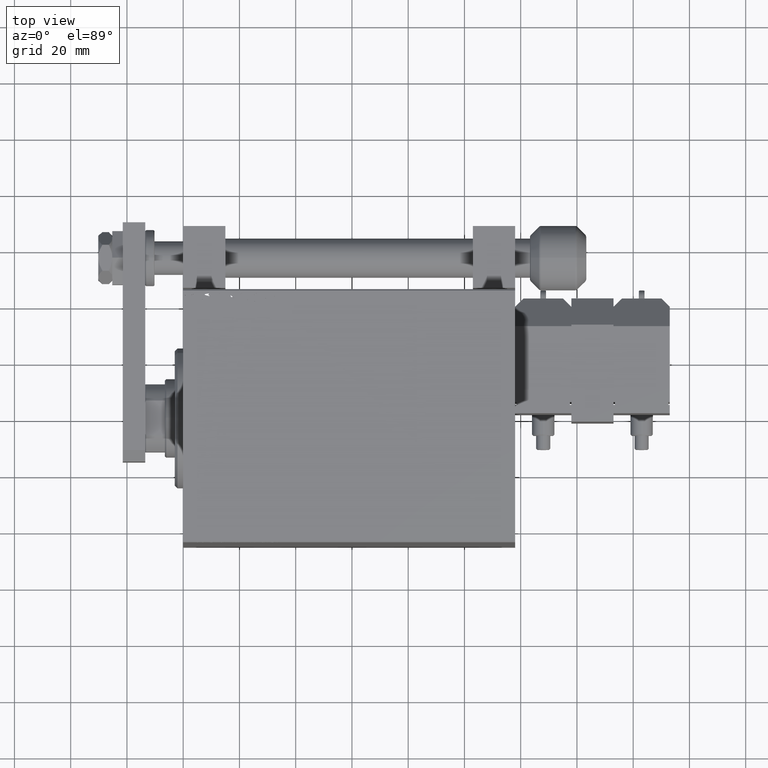
[diagram: clean part render]
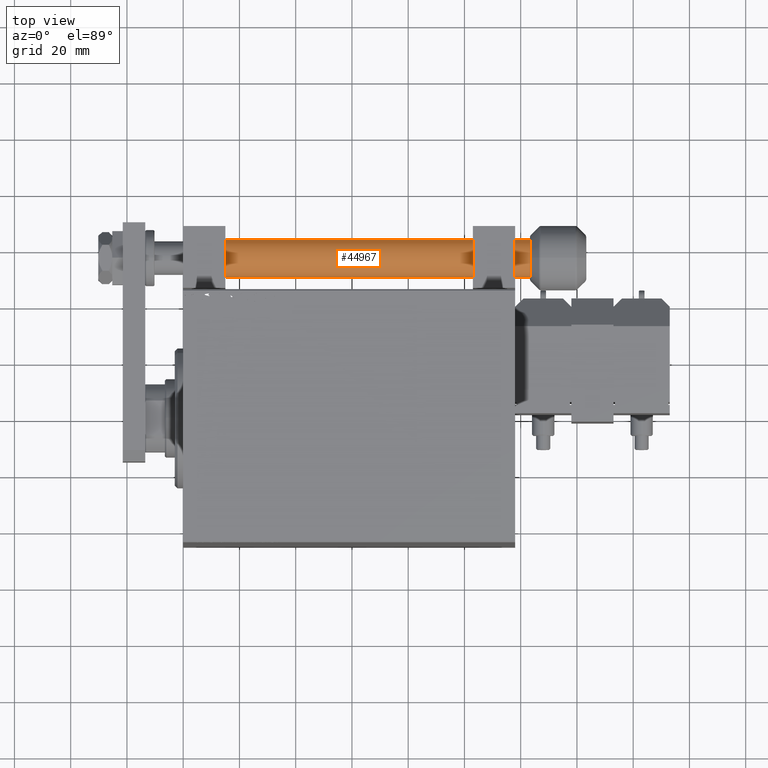
[diagram: same view with one face highlighted and labeled with its STEP entity id]
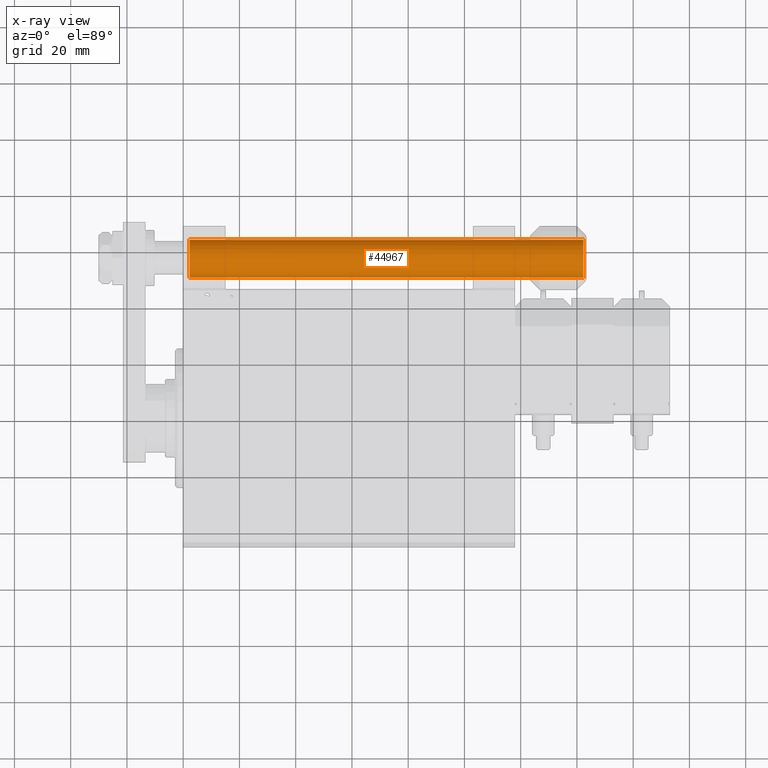
[diagram: x-ray of the same camera — body ghosted, the highlighted face saturated]
A machine part, top view. The second image highlights one B-rep face of the part: STEP entity #44967.
The next image is the same camera in x-ray: the body ghosted, the highlighted face saturated — about 0% of this face is hidden behind the body in this view.
In plain terms, the highlighted cylindrical surface (edge-blend (fillet) strip) has radius 7 mm, axis along (-1, 0, 0).
Its self-contained STEP definition (entity closure, byte-faithful):
#1081 = CIRCLE ( 'NONE', #14214, 7.000000000000000000 ) ;
#3076 = DIRECTION ( 'NONE',  ( 1.000000000000000000, 0.000000000000000000, 0.000000000000000000 ) ) ;
#3969 = VERTEX_POINT ( 'NONE', #21484 ) ;
#4390 = CIRCLE ( 'NONE', #33241, 7.000000000000000000 ) ;
#5896 = CARTESIAN_POINT ( 'NONE',  ( -7.000000000000000000, 0.000000000000000000, 142.0000000000000000 ) ) ;
#6796 = DIRECTION ( 'NONE',  ( 1.000000000000000000, 0.000000000000000000, 0.000000000000000000 ) ) ;
#8948 = AXIS2_PLACEMENT_3D ( 'NONE', #30933, #38923, #3076 ) ;
#10175 = VECTOR ( 'NONE', #18392, 1000.000000000000000 ) ;
#13071 = CIRCLE ( 'NONE', #8948, 7.000000000000000000 ) ;
#14214 = AXIS2_PLACEMENT_3D ( 'NONE', #26392, #42149, #6796 ) ;
#14784 = CARTESIAN_POINT ( 'NONE',  ( -7.000000000000000000, 0.000000000000000000, 143.0000000000000000 ) ) ;
#15765 = EDGE_CURVE ( 'NONE', #33114, #32433, #4390, .T. ) ;
#16149 = VERTEX_POINT ( 'NONE', #5896 ) ;
#16366 = FACE_OUTER_BOUND ( 'NONE', #35089, .T. ) ;
#16416 = DIRECTION ( 'NONE',  ( 1.000000000000000000, 0.000000000000000000, 0.000000000000000000 ) ) ;
#16589 = CARTESIAN_POINT ( 'NONE',  ( -7.000000000000000000, 0.000000000000000000, 2.000000000000029310 ) ) ;
#16894 = EDGE_CURVE ( 'NONE', #16149, #33114, #32618, .T. ) ;
#17055 = DIRECTION ( 'NONE',  ( 0.000000000000000000, 0.000000000000000000, -1.000000000000000000 ) ) ;
#17865 = CARTESIAN_POINT ( 'NONE',  ( 7.000000000000000000, 8.572527594031473190E-16, 2.000000000000029310 ) ) ;
#18392 = DIRECTION ( 'NONE',  ( -0.000000000000000000, -0.000000000000000000, -1.000000000000000000 ) ) ;
#19040 = VERTEX_POINT ( 'NONE', #30377 ) ;
#19547 = CARTESIAN_POINT ( 'NONE',  ( -0.4999999999999975020, -6.982120021884471228, 142.0000000000000000 ) ) ;
#19897 = ORIENTED_EDGE ( 'NONE', *, *, #49046, .T. ) ;
#21484 = CARTESIAN_POINT ( 'NONE',  ( 7.000000000000000000, 8.572527594031473190E-16, 142.0000000000000000 ) ) ;
#23958 = CIRCLE ( 'NONE', #26457, 7.000000000000000000 ) ;
#26392 = CARTESIAN_POINT ( 'NONE',  ( 0.000000000000000000, 0.000000000000000000, 142.0000000000000000 ) ) ;
#26457 = AXIS2_PLACEMENT_3D ( 'NONE', #36684, #17055, #48800 ) ;
#29129 = EDGE_CURVE ( 'NONE', #41059, #16149, #13071, .T. ) ;
#29195 = ORIENTED_EDGE ( 'NONE', *, *, #16894, .T. ) ;
#30377 = CARTESIAN_POINT ( 'NONE',  ( 0.5000000000000001110, -6.982120021884471228, 142.0000000000000000 ) ) ;
#30923 = ORIENTED_EDGE ( 'NONE', *, *, #38399, .T. ) ;
#30933 = CARTESIAN_POINT ( 'NONE',  ( 0.000000000000000000, 0.000000000000000000, 142.0000000000000000 ) ) ;
#31379 = ORIENTED_EDGE ( 'NONE', *, *, #43323, .F. ) ;
#32119 = CYLINDRICAL_SURFACE ( 'NONE', #32279, 7.000000000000000000 ) ;
#32279 = AXIS2_PLACEMENT_3D ( 'NONE', #46902, #48370, #46646 ) ;
#32433 = VERTEX_POINT ( 'NONE', #17865 ) ;
#32618 = LINE ( 'NONE', #14784, #10175 ) ;
#33114 = VERTEX_POINT ( 'NONE', #16589 ) ;
#33241 = AXIS2_PLACEMENT_3D ( 'NONE', #35786, #43010, #16416 ) ;
#33901 = ORIENTED_EDGE ( 'NONE', *, *, #15765, .T. ) ;
#35089 = EDGE_LOOP ( 'NONE', ( #31379, #30923, #19897, #38947, #29195, #33901 ) ) ;
#35786 = CARTESIAN_POINT ( 'NONE',  ( 0.000000000000000000, 0.000000000000000000, 2.000000000000029310 ) ) ;
#36684 = CARTESIAN_POINT ( 'NONE',  ( 0.000000000000000000, 0.000000000000000000, 142.0000000000000000 ) ) ;
#38399 = EDGE_CURVE ( 'NONE', #3969, #19040, #23958, .T. ) ;
#38923 = DIRECTION ( 'NONE',  ( 0.000000000000000000, 0.000000000000000000, -1.000000000000000000 ) ) ;
#38947 = ORIENTED_EDGE ( 'NONE', *, *, #29129, .T. ) ;
#40040 = DIRECTION ( 'NONE',  ( -0.000000000000000000, -0.000000000000000000, -1.000000000000000000 ) ) ;
#41059 = VERTEX_POINT ( 'NONE', #19547 ) ;
#42149 = DIRECTION ( 'NONE',  ( 0.000000000000000000, 0.000000000000000000, -1.000000000000000000 ) ) ;
#43010 = DIRECTION ( 'NONE',  ( -0.000000000000000000, -0.000000000000000000, 1.000000000000000000 ) ) ;
#43323 = EDGE_CURVE ( 'NONE', #3969, #32433, #46509, .T. ) ;
#44967 = ADVANCED_FACE ( 'NONE', ( #16366 ), #32119, .T. ) ;
#46509 = LINE ( 'NONE', #50641, #50492 ) ;
#46646 = DIRECTION ( 'NONE',  ( -1.000000000000000000, 0.000000000000000000, 0.000000000000000000 ) ) ;
#46902 = CARTESIAN_POINT ( 'NONE',  ( 0.000000000000000000, 0.000000000000000000, 143.0000000000000000 ) ) ;
#48370 = DIRECTION ( 'NONE',  ( -0.000000000000000000, -0.000000000000000000, -1.000000000000000000 ) ) ;
#48800 = DIRECTION ( 'NONE',  ( 1.000000000000000000, 0.000000000000000000, 0.000000000000000000 ) ) ;
#49046 = EDGE_CURVE ( 'NONE', #19040, #41059, #1081, .T. ) ;
#50492 = VECTOR ( 'NONE', #40040, 1000.000000000000000 ) ;
#50641 = CARTESIAN_POINT ( 'NONE',  ( 7.000000000000000000, 8.572527594031473190E-16, 143.0000000000000000 ) ) ;